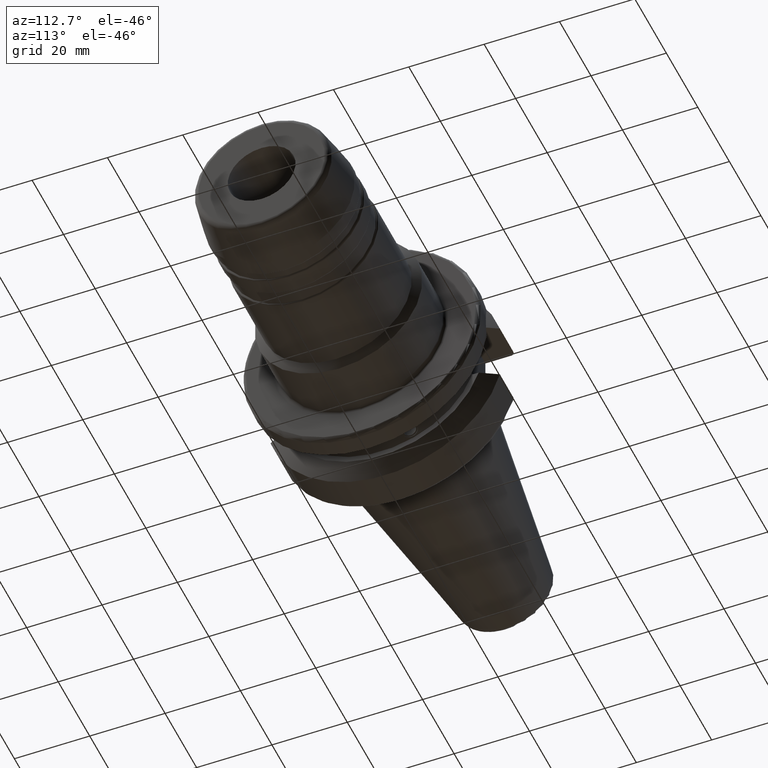
[diagram: clean part render]
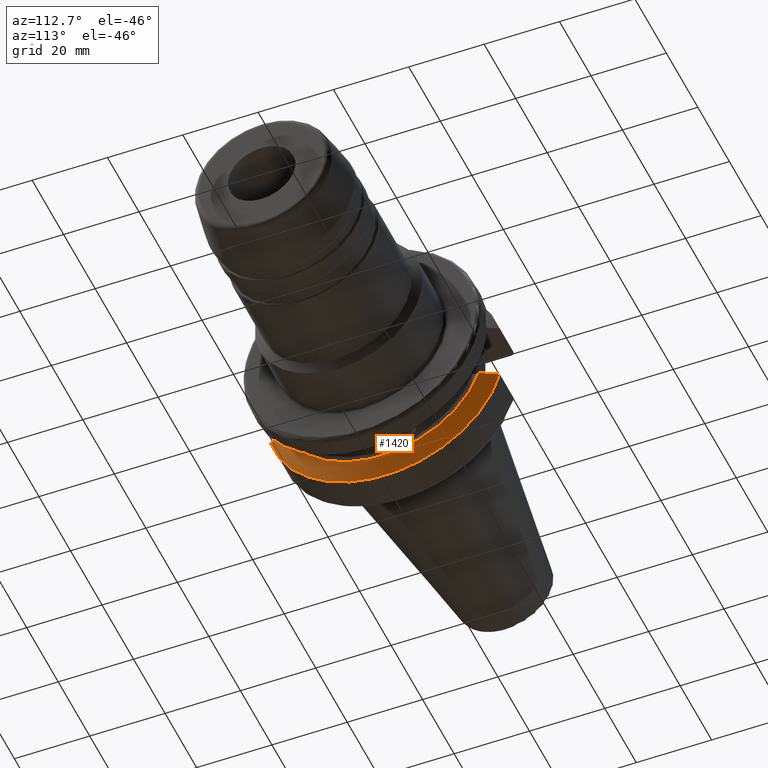
[diagram: same view with one face highlighted and labeled with its STEP entity id]
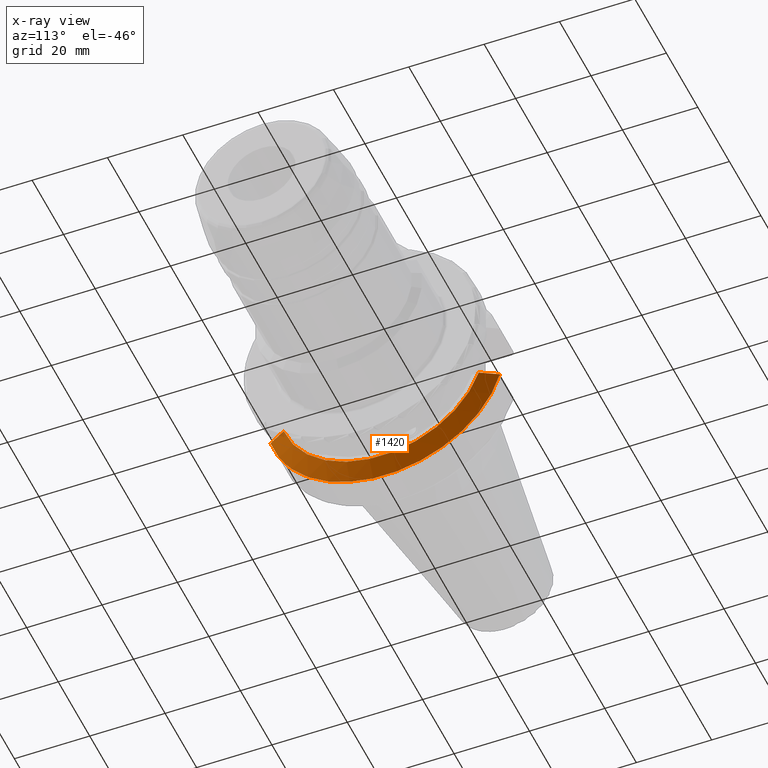
[diagram: x-ray of the same camera — body ghosted, the highlighted face saturated]
A machine part, auxiliary view. The second image highlights one B-rep face of the part: STEP entity #1420.
The next image is the same camera in x-ray: the body ghosted, the highlighted face saturated — about 0% of this face is hidden behind the body in this view.
In plain terms, the highlighted conical surface has half-angle 60.125 deg.
Its self-contained STEP definition (entity closure, byte-faithful):
#16=(
BOUNDED_CURVE()
B_SPLINE_CURVE(2,(#2624,#2625,#2626),.UNSPECIFIED.,.F.,.F.)
B_SPLINE_CURVE_WITH_KNOTS((3,3),(0.,0.523582790832811),.UNSPECIFIED.)
CURVE()
GEOMETRIC_REPRESENTATION_ITEM()
RATIONAL_B_SPLINE_CURVE((1.,1.0030736009757,1.))
REPRESENTATION_ITEM('')
);
#17=(
BOUNDED_CURVE()
B_SPLINE_CURVE(2,(#2681,#2682,#2683),.UNSPECIFIED.,.F.,.F.)
B_SPLINE_CURVE_WITH_KNOTS((3,3),(0.,0.523582790832811),.UNSPECIFIED.)
CURVE()
GEOMETRIC_REPRESENTATION_ITEM()
RATIONAL_B_SPLINE_CURVE((1.,1.0030736009757,1.))
REPRESENTATION_ITEM('')
);
#86=CONICAL_SURFACE('',#1616,29.2970358274569,1.0493792127616);
#193=FACE_OUTER_BOUND('',#292,.T.);
#292=EDGE_LOOP('',(#1190,#1191,#1192,#1193));
#531=CIRCLE('',#1615,27.0940716549138);
#532=CIRCLE('',#1617,31.5000000000001);
#653=VERTEX_POINT('',#2621);
#654=VERTEX_POINT('',#2623);
#663=VERTEX_POINT('',#2675);
#664=VERTEX_POINT('',#2679);
#833=EDGE_CURVE('',#654,#653,#16,.T.);
#849=EDGE_CURVE('',#654,#663,#531,.T.);
#851=EDGE_CURVE('',#653,#664,#532,.T.);
#852=EDGE_CURVE('',#664,#663,#17,.T.);
#1190=ORIENTED_EDGE('',*,*,#833,.T.);
#1191=ORIENTED_EDGE('',*,*,#851,.T.);
#1192=ORIENTED_EDGE('',*,*,#852,.T.);
#1193=ORIENTED_EDGE('',*,*,#849,.F.);
#1420=ADVANCED_FACE('',(#193),#86,.T.);
#1615=AXIS2_PLACEMENT_3D('',#2676,#2015,#2016);
#1616=AXIS2_PLACEMENT_3D('',#2678,#2018,#2019);
#1617=AXIS2_PLACEMENT_3D('',#2680,#2020,#2021);
#2015=DIRECTION('center_axis',(1.,0.,0.));
#2016=DIRECTION('ref_axis',(0.,0.,-1.));
#2018=DIRECTION('center_axis',(-1.,0.,0.));
#2019=DIRECTION('ref_axis',(0.,1.,0.));
#2020=DIRECTION('center_axis',(1.,0.,0.));
#2021=DIRECTION('ref_axis',(0.,0.,-1.));
#2621=CARTESIAN_POINT('',(11.5690363073382,-30.4540227227866,-8.05));
#2623=CARTESIAN_POINT('',(14.1,-25.8705666509569,-8.05));
#2624=CARTESIAN_POINT('Ctrl Pts',(14.1,-25.8705666509569,-8.05));
#2625=CARTESIAN_POINT('Ctrl Pts',(12.9374976962935,-27.9899702651817,-8.05));
#2626=CARTESIAN_POINT('Ctrl Pts',(11.5690363073382,-30.4540227227866,-8.05));
#2675=CARTESIAN_POINT('',(14.1,25.8705666509569,-8.05));
#2676=CARTESIAN_POINT('Origin',(14.1,0.,0.));
#2678=CARTESIAN_POINT('Origin',(12.8345181536691,0.,0.));
#2679=CARTESIAN_POINT('',(11.5690363073382,30.4540227227866,-8.05));
#2680=CARTESIAN_POINT('Origin',(11.5690363073382,0.,0.));
#2681=CARTESIAN_POINT('Ctrl Pts',(11.5690363073382,30.4540227227866,-8.05));
#2682=CARTESIAN_POINT('Ctrl Pts',(12.9374976962935,27.9899702651817,-8.05));
#2683=CARTESIAN_POINT('Ctrl Pts',(14.1,25.8705666509569,-8.05));